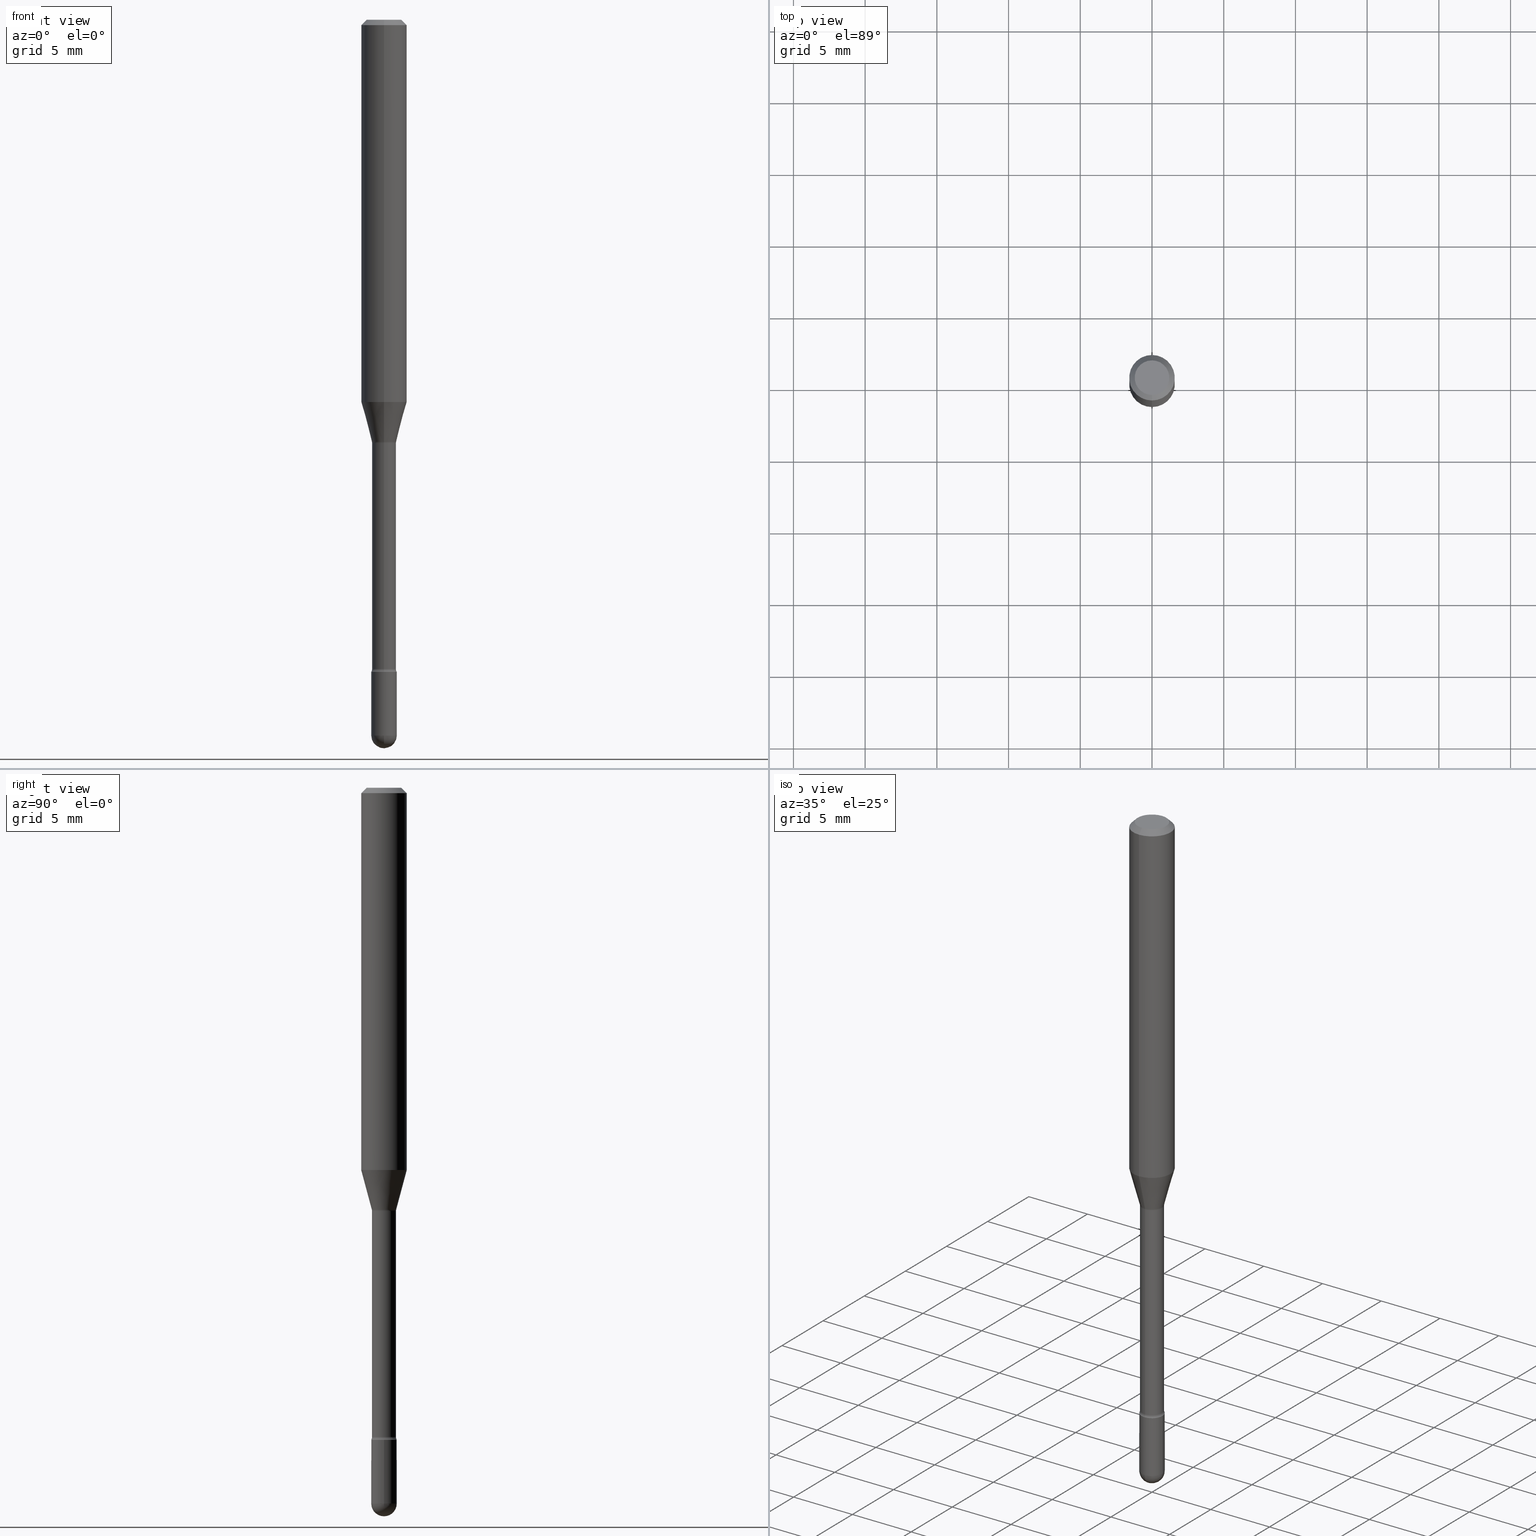
[diagram: canonical four-view strip — front | top / right | iso, engineering-drawing reading convention]
A machine part, canonical four-view strip (front | top / right | iso — engineering-drawing reading convention). The complete STEP part file that produces these views, byte-faithful:
ISO-10303-21;
HEADER;
FILE_DESCRIPTION (( 'STEP AP203' ),
    '1' );
FILE_NAME ('09328.STEP',
    '2024-04-09T22:32:50',
    ( '' ),
    ( '' ),
    'SwSTEP 2.0',
    'SolidWorks 2023',
    '' );
FILE_SCHEMA (( 'CONFIG_CONTROL_DESIGN' ));
ENDSEC;

DATA;
#1 = CARTESIAN_POINT ( 'NONE',  ( 2.374002335562008662E-16, 0.03341111260565993862, -1.158092501787273187 ) ) ;
#2 = EDGE_CURVE ( 'NONE', #305, #100, #418, .T. ) ;
#3 = VECTOR ( 'NONE', #344, 39.37007874015748143 ) ;
#4 = PRODUCT_DEFINITION_FORMATION_WITH_SPECIFIED_SOURCE ( 'ANY', '', #389, .NOT_KNOWN. ) ;
#5 = ORIENTED_EDGE ( 'NONE', *, *, #62, .T. ) ;
#6 = CC_DESIGN_PERSON_AND_ORGANIZATION_ASSIGNMENT ( #362, #313, ( #389 ) ) ;
#7 = APPROVAL ( #114, 'UNSPECIFIED' ) ;
#8 = VERTEX_POINT ( 'NONE', #291 ) ;
#9 = PLANE ( 'NONE',  #33 ) ;
#10 = TOROIDAL_SURFACE ( 'NONE', #482, 0.04790000000000007446, 0.01500000000000002373 ) ;
#11 = AXIS2_PLACEMENT_3D ( 'NONE', #355, #472, #73 ) ;
#12 = APPROVAL_PERSON_ORGANIZATION ( #532, #530, #39 ) ;
#13 = CARTESIAN_POINT ( 'NONE',  ( 4.805346204153793345E-29, -6.860760830826780393E-15, -1.964999999999999858 ) ) ;
#14 = DIRECTION ( 'NONE',  ( -2.445497683573463397E-29, 3.491439984779462686E-15, 1.000000000000000000 ) ) ;
#15 = SPHERICAL_SURFACE ( 'NONE', #302, 0.03500000000000001721 ) ;
#16 = FACE_OUTER_BOUND ( 'NONE', #332, .T. ) ;
#17 = EDGE_CURVE ( 'NONE', #503, #376, #507, .T. ) ;
#18 = CARTESIAN_POINT ( 'NONE',  ( 0.03500000000000000333, -6.799659907397025402E-15, -1.964999999999999858 ) ) ;
#19 = DIRECTION ( 'NONE',  ( -2.445468806185136597E-29, 3.491481338843145583E-15, 1.000000000000000000 ) ) ;
#20 = CIRCLE ( 'NONE', #229, 0.03500000000000000333 ) ;
#21 = AXIS2_PLACEMENT_3D ( 'NONE', #160, #297, #212 ) ;
#22 = DIRECTION ( 'NONE',  ( -6.982962677686265922E-15, -1.000000000000000000, 3.491439984779462292E-15 ) ) ;
#23 = FACE_OUTER_BOUND ( 'NONE', #321, .T. ) ;
#24 = DIRECTION ( 'NONE',  ( 1.000000000000000000, -6.982962677686265922E-15, 4.883557194083112340E-29 ) ) ;
#25 = ADVANCED_FACE ( 'NONE', ( #248 ), #10, .F. ) ;
#26 = CARTESIAN_POINT ( 'NONE',  ( -2.486899575159870668E-16, -0.03500000000000687284, -1.964999999999999858 ) ) ;
#27 = VERTEX_POINT ( 'NONE', #292 ) ;
#28 = DIRECTION ( 'NONE',  ( -1.000000000000000000, 7.105427357601001070E-15, -4.926315508542082329E-29 ) ) ;
#29 = CARTESIAN_POINT ( 'NONE',  ( 4.805346204153793345E-29, -6.860760830826780393E-15, -1.964999999999999858 ) ) ;
#30 = CARTESIAN_POINT ( 'NONE',  ( -1.169113584055446105E-44, 1.669184350826100908E-30, 4.780733988912460139E-16 ) ) ;
#31 = CARTESIAN_POINT ( 'NONE',  ( 3.668246525360215467E-31, -5.237159977169223045E-17, -0.01500000000000008271 ) ) ;
#32 = CONICAL_SURFACE ( 'NONE', #260, 0.06250000000000000000, 0.7853981633974483900 ) ;
#33 = AXIS2_PLACEMENT_3D ( 'NONE', #339, #455, #54 ) ;
#34 = CARTESIAN_POINT ( 'NONE',  ( 2.412292587905979007E-16, 0.03289999999999382307, -1.782345589506696193 ) ) ;
#35 = CARTESIAN_POINT ( 'NONE',  ( 2.841573096316353332E-29, -4.057013286636126142E-15, -1.161974787463810888 ) ) ;
#36 = DIRECTION ( 'NONE',  ( -2.445497683573463397E-29, 3.491439984779462686E-15, 1.000000000000000000 ) ) ;
#37 = PLANE ( 'NONE',  #379 ) ;
#38 = ORGANIZATION ( 'UNSPECIFIED', 'UNSPECIFIED', '' ) ;
#39 = APPROVAL_ROLE ( '' ) ;
#40 = ORIENTED_EDGE ( 'NONE', *, *, #286, .F. ) ;
#41 = EDGE_CURVE ( 'NONE', #390, #100, #508, .T. ) ;
#42 = CARTESIAN_POINT ( 'NONE',  ( 4.377440853596499335E-29, -6.249677572755238571E-15, -1.790000000000000036 ) ) ;
#43 = LENGTH_MEASURE_WITH_UNIT ( LENGTH_MEASURE( 0.02539999999999999897 ), #449 );
#44 = CALENDAR_DATE ( 2024, 9, 4 ) ;
#45 = ORIENTED_EDGE ( 'NONE', *, *, #17, .T. ) ;
#46 = EDGE_CURVE ( 'NONE', #257, #8, #306, .T. ) ;
#47 = AXIS2_PLACEMENT_3D ( 'NONE', #420, #19, #499 ) ;
#48 = ORIENTED_EDGE ( 'NONE', *, *, #316, .F. ) ;
#49 = DATE_AND_TIME ( #106, #238 ) ;
#50 = AXIS2_PLACEMENT_3D ( 'NONE', #152, #156, #232 ) ;
#51 = AXIS2_PLACEMENT_3D ( 'NONE', #486, #191, #438 ) ;
#52 = VERTEX_POINT ( 'NONE', #474 ) ;
#53 = FACE_OUTER_BOUND ( 'NONE', #346, .T. ) ;
#54 = DIRECTION ( 'NONE',  ( 1.000000000000000000, -6.982962677686265922E-15, 4.876176775795935793E-29 ) ) ;
#55 = LINE ( 'NONE', #546, #342 ) ;
#56 = CIRCLE ( 'NONE', #140, 0.03500000000000001721 ) ;
#57 = SECURITY_CLASSIFICATION ( '', '', #404 ) ;
#58 = ADVANCED_FACE ( 'NONE', ( #436 ), #541, .T. ) ;
#59 = DIRECTION ( 'NONE',  ( -6.982962677686266711E-15, -1.000000000000000000, 4.088232597799137334E-15 ) ) ;
#60 = CC_DESIGN_PERSON_AND_ORGANIZATION_ASSIGNMENT ( #563, #356, ( #57 ) ) ;
#61 = DIRECTION ( 'NONE',  ( -6.982962677686265922E-15, -1.000000000000000000, 3.491439984779462292E-15 ) ) ;
#62 = EDGE_CURVE ( 'NONE', #8, #202, #528, .T. ) ;
#63 = DIRECTION ( 'NONE',  ( 1.839019923739594793E-15, 0.2588190451025241812, 0.9659258262890673130 ) ) ;
#64 = APPROVAL ( #199, 'UNSPECIFIED' ) ;
#65 = ORIENTED_EDGE ( 'NONE', *, *, #509, .T. ) ;
#66 = EDGE_LOOP ( 'NONE', ( #552, #548 ) ) ;
#67 = DIRECTION ( 'NONE',  ( -2.445497683573463397E-29, 3.491439984779462686E-15, 1.000000000000000000 ) ) ;
#68 = ORIENTED_EDGE ( 'NONE', *, *, #226, .F. ) ;
#69 = CARTESIAN_POINT ( 'NONE',  ( -4.364351673553912750E-16, -0.06250000000000005551, -0.01499999999999986587 ) ) ;
#70 = DIRECTION ( 'NONE',  ( -2.445497683573463397E-29, 3.491439984779462686E-15, 1.000000000000000000 ) ) ;
#71 = FACE_OUTER_BOUND ( 'NONE', #411, .T. ) ;
#72 = CARTESIAN_POINT ( 'NONE',  ( 2.337685600650730998E-16, 0.03290000000000002645, 3.632050233920016564E-16 ) ) ;
#73 = DIRECTION ( 'NONE',  ( 1.000000000000000000, -6.982962677686276966E-15, 0.000000000000000000 ) ) ;
#74 = DIRECTION ( 'NONE',  ( -2.445497683573463397E-29, 3.491439984779462686E-15, 1.000000000000000000 ) ) ;
#75 = EDGE_LOOP ( 'NONE', ( #101, #115 ) ) ;
#76 = CARTESIAN_POINT ( 'NONE',  ( 2.023762844999115351E-45, -2.888933844171342410E-31, -8.274899638957028495E-17 ) ) ;
#77 = FACE_OUTER_BOUND ( 'NONE', #145, .T. ) ;
#78 = AXIS2_PLACEMENT_3D ( 'NONE', #421, #267, #441 ) ;
#79 = ORIENTED_EDGE ( 'NONE', *, *, #117, .F. ) ;
#80 = DIRECTION ( 'NONE',  ( -2.445497683573463397E-29, 3.491439984779462686E-15, 1.000000000000000000 ) ) ;
#81 = DIRECTION ( 'NONE',  ( -2.445497683573463397E-29, 3.491439984779462686E-15, 1.000000000000000000 ) ) ;
#82 = ADVANCED_FACE ( 'NONE', ( #423 ), #385, .T. ) ;
#83 = VERTEX_POINT ( 'NONE', #335 ) ;
#84 = CALENDAR_DATE ( 2024, 9, 4 ) ;
#85 = DIRECTION ( 'NONE',  ( 1.000000000000000000, -7.105427357601001070E-15, 4.926315002100865368E-29 ) ) ;
#86 = CARTESIAN_POINT ( 'NONE',  ( 4.377440853596499335E-29, -6.249677572755238571E-15, -1.790000000000000036 ) ) ;
#87 = EDGE_CURVE ( 'NONE', #52, #289, #377, .T. ) ;
#88 = ORIENTED_EDGE ( 'NONE', *, *, #153, .T. ) ;
#89 = DIRECTION ( 'NONE',  ( -2.445497683573463397E-29, 3.491439984779462686E-15, 1.000000000000000000 ) ) ;
#90 = AXIS2_PLACEMENT_3D ( 'NONE', #225, #431, #518 ) ;
#91 = APPROVAL_PERSON_ORGANIZATION ( #133, #64, #354 ) ;
#92 = APPROVAL_STATUS ( 'not_yet_approved' ) ;
#93 = ADVANCED_BREP_SHAPE_REPRESENTATION ( '09328', ( #273, #452, #326 ), #303 ) ;
#94 = CARTESIAN_POINT ( 'NONE',  ( 4.440892098500625669E-16, 0.06250000000000000000, 2.598583998425296453E-16 ) ) ;
#95 = ORIENTED_EDGE ( 'NONE', *, *, #338, .F. ) ;
#96 = APPLICATION_PROTOCOL_DEFINITION ( 'international standard', 'config_control_design', 1994, #400 ) ;
#97 = DIRECTION ( 'NONE',  ( -6.982962677686266711E-15, -1.000000000000000000, 4.151744671222284594E-15 ) ) ;
#98 = ORIENTED_EDGE ( 'NONE', *, *, #182, .F. ) ;
#99 = PERSON_AND_ORGANIZATION_ROLE ( 'design_supplier' ) ;
#100 = VERTEX_POINT ( 'NONE', #168 ) ;
#101 = ORIENTED_EDGE ( 'NONE', *, *, #41, .T. ) ;
#102 = AXIS2_PLACEMENT_3D ( 'NONE', #437, #89, #274 ) ;
#103 = APPROVAL_DATE_TIME ( #49, #7 ) ;
#104 = EDGE_LOOP ( 'NONE', ( #125, #143, #185, #148 ) ) ;
#105 = CYLINDRICAL_SURFACE ( 'NONE', #451, 0.03290000000000002645 ) ;
#106 = CALENDAR_DATE ( 2024, 9, 4 ) ;
#107 = ORIENTED_EDGE ( 'NONE', *, *, #126, .F. ) ;
#108 = EDGE_CURVE ( 'NONE', #503, #155, #283, .T. ) ;
#109 = FACE_OUTER_BOUND ( 'NONE', #135, .T. ) ;
#110 = CARTESIAN_POINT ( 'NONE',  ( -0.03500000000000000333, 2.486899575160350887E-16, -1.721627281589217108E-30 ) ) ;
#111 = CIRCLE ( 'NONE', #244, 0.06250000000000000000 ) ;
#112 = AXIS2_PLACEMENT_3D ( 'NONE', #42, #566, #138 ) ;
#113 = FACE_OUTER_BOUND ( 'NONE', #104, .T. ) ;
#114 = APPROVAL_STATUS ( 'not_yet_approved' ) ;
#115 = ORIENTED_EDGE ( 'NONE', *, *, #117, .T. ) ;
#116 = ORIENTED_EDGE ( 'NONE', *, *, #241, .T. ) ;
#117 = EDGE_CURVE ( 'NONE', #100, #390, #20, .T. ) ;
#118 = CC_DESIGN_PERSON_AND_ORGANIZATION_ASSIGNMENT ( #322, #99, ( #4 ) ) ;
#119 = CARTESIAN_POINT ( 'NONE',  ( -2.333085523452963922E-16, -0.03341111260566802243, -1.158092501787272965 ) ) ;
#120 = DIRECTION ( 'NONE',  ( 2.445497683573463397E-29, -3.491439984779462686E-15, -1.000000000000000000 ) ) ;
#121 = DIRECTION ( 'NONE',  ( -6.982962677686265922E-15, -1.000000000000000000, 4.370956789862821150E-15 ) ) ;
#122 = AXIS2_PLACEMENT_3D ( 'NONE', #497, #465, #462 ) ;
#123 = CC_DESIGN_APPROVAL ( #64, ( #477 ) ) ;
#124 = DIRECTION ( 'NONE',  ( 1.000000000000000000, -6.982962677686276966E-15, 0.000000000000000000 ) ) ;
#125 = ORIENTED_EDGE ( 'NONE', *, *, #262, .F. ) ;
#126 = EDGE_CURVE ( 'NONE', #202, #8, #111, .T. ) ;
#127 = CIRCLE ( 'NONE', #500, 0.03500000000000000333 ) ;
#128 = CONICAL_SURFACE ( 'NONE', #370, 0.03341111260566398400, 0.2617993877991495189 ) ;
#129 = DIRECTION ( 'NONE',  ( 2.445497683573463397E-29, -3.491439984779462686E-15, -1.000000000000000000 ) ) ;
#130 = CARTESIAN_POINT ( 'NONE',  ( 4.358670540980284355E-29, -6.223026365132014624E-15, -1.782345589506696193 ) ) ;
#131 = ADVANCED_FACE ( 'NONE', ( #223 ), #105, .T. ) ;
#132 = EDGE_LOOP ( 'NONE', ( #467, #496, #279, #68 ) ) ;
#133 = PERSON_AND_ORGANIZATION ( #521, #38 ) ;
#134 = CC_DESIGN_DATE_AND_TIME_ASSIGNMENT ( #201, #336, ( #57 ) ) ;
#135 = EDGE_LOOP ( 'NONE', ( #144, #139, #107, #98 ) ) ;
#136 = DATE_AND_TIME ( #44, #483 ) ;
#137 = ORIENTED_EDGE ( 'NONE', *, *, #371, .T. ) ;
#138 = DIRECTION ( 'NONE',  ( -6.982962677686265922E-15, -1.000000000000000000, 0.000000000000000000 ) ) ;
#139 = ORIENTED_EDGE ( 'NONE', *, *, #233, .T. ) ;
#140 = AXIS2_PLACEMENT_3D ( 'NONE', #345, #28, #308 ) ;
#141 = AXIS2_PLACEMENT_3D ( 'NONE', #130, #159, #22 ) ;
#142 = CALENDAR_DATE ( 2024, 9, 4 ) ;
#143 = ORIENTED_EDGE ( 'NONE', *, *, #224, .T. ) ;
#144 = ORIENTED_EDGE ( 'NONE', *, *, #87, .T. ) ;
#145 = EDGE_LOOP ( 'NONE', ( #409, #45, #264, #511 ) ) ;
#146 = PERSON_AND_ORGANIZATION ( #521, #38 ) ;
#147 = ORIENTED_EDGE ( 'NONE', *, *, #533, .T. ) ;
#148 = ORIENTED_EDGE ( 'NONE', *, *, #46, .F. ) ;
#149 = EDGE_CURVE ( 'NONE', #364, #366, #443, .T. ) ;
#150 = AXIS2_PLACEMENT_3D ( 'NONE', #295, #550, #121 ) ;
#151 = ORIENTED_EDGE ( 'NONE', *, *, #206, .F. ) ;
#152 = CARTESIAN_POINT ( 'NONE',  ( 3.403499704291162762E-16, 0.04789999999999593888, -1.161974787463810888 ) ) ;
#153 = EDGE_CURVE ( 'NONE', #83, #289, #234, .T. ) ;
#154 = CARTESIAN_POINT ( 'NONE',  ( 2.841606651113517657E-29, -4.056965234256767798E-15, -1.161974787463810888 ) ) ;
#155 = VERTEX_POINT ( 'NONE', #458 ) ;
#156 = DIRECTION ( 'NONE',  ( 1.000000000000000000, -7.105427357601001070E-15, 4.926315002100865368E-29 ) ) ;
#157 = DIRECTION ( 'NONE',  ( 6.982962677686265922E-15, 1.000000000000000000, 0.000000000000000000 ) ) ;
#158 = COORDINATED_UNIVERSAL_TIME_OFFSET ( 5, 0, .BEHIND. ) ;
#159 = DIRECTION ( 'NONE',  ( -2.445497683573463397E-29, 3.491439984779462686E-15, 1.000000000000000000 ) ) ;
#160 = CARTESIAN_POINT ( 'NONE',  ( -1.169113584055446105E-44, 1.669184350826100908E-30, 4.780733988912460139E-16 ) ) ;
#161 = AXIS2_PLACEMENT_3D ( 'NONE', #290, #14, #333 ) ;
#162 = EDGE_CURVE ( 'NONE', #428, #364, #433, .T. ) ;
#163 = CC_DESIGN_APPROVAL ( #530, ( #4 ) ) ;
#164 = DIRECTION ( 'NONE',  ( -6.982962677686265922E-15, -1.000000000000000000, 4.370956789862821150E-15 ) ) ;
#165 = EDGE_LOOP ( 'NONE', ( #287, #487, #166, #231, #147 ) ) ;
#166 = ORIENTED_EDGE ( 'NONE', *, *, #41, .F. ) ;
#167 = CARTESIAN_POINT ( 'NONE',  ( -0.03500000000000000333, -6.306566256161970939E-15, -1.964999999999999858 ) ) ;
#168 = CARTESIAN_POINT ( 'NONE',  ( -0.03500000000000000333, -6.306566256161970939E-15, -1.790000000000000036 ) ) ;
#169 = EDGE_LOOP ( 'NONE', ( #490, #304, #382, #369 ) ) ;
#170 = CIRCLE ( 'NONE', #311, 0.04749999999999999362 ) ;
#171 = DIRECTION ( 'NONE',  ( -1.807323732225324617E-15, -0.2588190451025174088, 0.9659258262890690894 ) ) ;
#172 = ADVANCED_FACE ( 'NONE', ( #294 ), #426, .T. ) ;
#173 = CARTESIAN_POINT ( 'NONE',  ( -2.333085523452963922E-16, -0.03341111260566802243, -1.158092501787272965 ) ) ;
#174 = DIRECTION ( 'NONE',  ( 7.105427357601001859E-15, 1.000000000000000000, 0.000000000000000000 ) ) ;
#175 = ADVANCED_FACE ( 'NONE', ( #556 ), #15, .T. ) ;
#176 = DIRECTION ( 'NONE',  ( -6.982962677686266711E-15, -1.000000000000000000, 3.491439984779463081E-15 ) ) ;
#177 = DIRECTION ( 'NONE',  ( -2.445497683573463397E-29, 3.491439984779462686E-15, 1.000000000000000000 ) ) ;
#178 = DIRECTION ( 'NONE',  ( -6.982962677686266711E-15, -1.000000000000000000, 3.491439984779463081E-15 ) ) ;
#179 = DIRECTION ( 'NONE',  ( -2.445468806185136877E-29, 3.491481338843145188E-15, 1.000000000000000000 ) ) ;
#180 = CARTESIAN_POINT ( 'NONE',  ( -1.169113584055446105E-44, 1.669184350826100908E-30, 4.780733988912460139E-16 ) ) ;
#181 = CLOSED_SHELL ( 'NONE', ( #495, #301, #439, #324, #363, #456, #172, #374, #277, #514, #547, #25, #131, #337 ) ) ;
#182 = EDGE_CURVE ( 'NONE', #52, #202, #55, .T. ) ;
#183 = VECTOR ( 'NONE', #365, 39.37007874015748143 ) ;
#184 = FACE_OUTER_BOUND ( 'NONE', #66, .T. ) ;
#185 = ORIENTED_EDGE ( 'NONE', *, *, #126, .T. ) ;
#186 = CARTESIAN_POINT ( 'NONE',  ( 0.000000000000000000, 0.000000000000000000, 0.000000000000000000 ) ) ;
#187 = DIRECTION ( 'NONE',  ( 6.982962677686265922E-15, 1.000000000000000000, -3.491439984779462686E-15 ) ) ;
#188 = CARTESIAN_POINT ( 'NONE',  ( 3.316907271900976096E-16, 0.04749999999999999362, 3.181880197381339971E-17 ) ) ;
#189 = ORIENTED_EDGE ( 'NONE', *, *, #182, .T. ) ;
#190 = APPROVAL_DATE_TIME ( #407, #530 ) ;
#191 = DIRECTION ( 'NONE',  ( -2.445468806185136597E-29, 3.491481338843145583E-15, 1.000000000000000000 ) ) ;
#192 = ORIENTED_EDGE ( 'NONE', *, *, #17, .F. ) ;
#193 = LINE ( 'NONE', #307, #515 ) ;
#194 = ORIENTED_EDGE ( 'NONE', *, *, #153, .F. ) ;
#195 = PERSON_AND_ORGANIZATION_ROLE ( 'creator' ) ;
#196 = AXIS2_PLACEMENT_3D ( 'NONE', #341, #427, #334 ) ;
#197 = LOCAL_TIME ( 18, 32, 50.00000000000000000, #527 ) ;
#198 = ORIENTED_EDGE ( 'NONE', *, *, #314, .T. ) ;
#199 = APPROVAL_STATUS ( 'not_yet_approved' ) ;
#200 = EDGE_LOOP ( 'NONE', ( #151, #531, #440, #415 ) ) ;
#201 = DATE_AND_TIME ( #142, #197 ) ;
#202 = VERTEX_POINT ( 'NONE', #69 ) ;
#203 = CARTESIAN_POINT ( 'NONE',  ( -2.297394720958497537E-16, -0.03290000000000405794, -1.161974787463810888 ) ) ;
#204 = PERSON_AND_ORGANIZATION ( #521, #38 ) ;
#205 = VERTEX_POINT ( 'NONE', #26 ) ;
#206 = EDGE_CURVE ( 'NONE', #503, #366, #256, .T. ) ;
#207 = ORIENTED_EDGE ( 'NONE', *, *, #485, .T. ) ;
#208 = AXIS2_PLACEMENT_3D ( 'NONE', #259, #398, #473 ) ;
#209 = APPROVAL_ROLE ( '' ) ;
#210 = CYLINDRICAL_SURFACE ( 'NONE', #21, 0.06250000000000000000 ) ;
#211 = CARTESIAN_POINT ( 'NONE',  ( 2.832112530484573364E-29, -4.043410466813366277E-15, -1.158092501787272965 ) ) ;
#212 = DIRECTION ( 'NONE',  ( -6.982962677686265922E-15, -1.000000000000000000, 3.491439984779462292E-15 ) ) ;
#213 = CARTESIAN_POINT ( 'NONE',  ( -1.169113584055446105E-44, 1.669184350826100908E-30, 4.780733988912460139E-16 ) ) ;
#214 = DIRECTION ( 'NONE',  ( -2.445497683573463397E-29, 3.491439984779462686E-15, 1.000000000000000000 ) ) ;
#215 = VECTOR ( 'NONE', #63, 39.37007874015748854 ) ;
#216 = CIRCLE ( 'NONE', #402, 0.03500000000000001721 ) ;
#217 = FACE_OUTER_BOUND ( 'NONE', #255, .T. ) ;
#218 = EDGE_CURVE ( 'NONE', #479, #376, #127, .T. ) ;
#219 = CARTESIAN_POINT ( 'NONE',  ( 2.832112530484573364E-29, -4.043410466813366277E-15, -1.158092501787272965 ) ) ;
#220 = EDGE_CURVE ( 'NONE', #366, #364, #348, .T. ) ;
#221 = CARTESIAN_POINT ( 'NONE',  ( 3.668246525360215467E-31, -5.237159977169223045E-17, -0.01500000000000008271 ) ) ;
#222 = TOROIDAL_SURFACE ( 'NONE', #161, 0.04789999999999999813, 0.01499999999999998036 ) ;
#223 = FACE_OUTER_BOUND ( 'NONE', #200, .T. ) ;
#224 = EDGE_CURVE ( 'NONE', #27, #202, #193, .T. ) ;
#225 = CARTESIAN_POINT ( 'NONE',  ( 0.000000000000000000, 0.000000000000000000, 0.000000000000000000 ) ) ;
#226 = EDGE_CURVE ( 'NONE', #417, #305, #561, .T. ) ;
#227 = DIRECTION ( 'NONE',  ( 0.000000000000000000, 0.000000000000000000, 1.000000000000000000 ) ) ;
#228 = CARTESIAN_POINT ( 'NONE',  ( 0.03500000000000000333, -2.444036937190193250E-16, 1.706661871528577808E-30 ) ) ;
#229 = AXIS2_PLACEMENT_3D ( 'NONE', #430, #388, #124 ) ;
#230 = CIRCLE ( 'NONE', #112, 0.03500000000000000333 ) ;
#231 = ORIENTED_EDGE ( 'NONE', *, *, #564, .F. ) ;
#232 = DIRECTION ( 'NONE',  ( 7.105427357601001859E-15, 1.000000000000000000, 0.000000000000000000 ) ) ;
#233 = EDGE_CURVE ( 'NONE', #289, #8, #410, .T. ) ;
#234 = LINE ( 'NONE', #1, #215 ) ;
#235 = CALENDAR_DATE ( 2024, 9, 4 ) ;
#236 = ORIENTED_EDGE ( 'NONE', *, *, #149, .T. ) ;
#237 = AXIS2_PLACEMENT_3D ( 'NONE', #211, #373, #59 ) ;
#238 = LOCAL_TIME ( 18, 32, 50.00000000000000000, #158 ) ;
#239 = ADVANCED_FACE ( 'NONE', ( #534 ), #466, .T. ) ;
#240 = SHAPE_DEFINITION_REPRESENTATION ( #554, #93 ) ;
#241 = EDGE_CURVE ( 'NONE', #155, #479, #368, .T. ) ;
#242 = ORIENTED_EDGE ( 'NONE', *, *, #371, .F. ) ;
#243 = ORIENTED_EDGE ( 'NONE', *, *, #535, .T. ) ;
#244 = AXIS2_PLACEMENT_3D ( 'NONE', #221, #74, #258 ) ;
#245 = AXIS2_PLACEMENT_3D ( 'NONE', #549, #67, #164 ) ;
#246 = CARTESIAN_POINT ( 'NONE',  ( 4.358722010466005313E-29, -6.222952657899001696E-15, -1.782345589506696193 ) ) ;
#247 = DIRECTION ( 'NONE',  ( 6.982962677686265922E-15, 1.000000000000000000, -3.483106191921935554E-15 ) ) ;
#248 = FACE_OUTER_BOUND ( 'NONE', #524, .T. ) ;
#249 = DIRECTION ( 'NONE',  ( -6.982962677686266711E-15, -1.000000000000000000, 3.491439984779463870E-15 ) ) ;
#250 = VECTOR ( 'NONE', #414, 39.37007874015748143 ) ;
#251 = AXIS2_PLACEMENT_3D ( 'NONE', #154, #266, #97 ) ;
#252 = LOCAL_TIME ( 18, 32, 50.00000000000000000, #478 ) ;
#253 = CARTESIAN_POINT ( 'NONE',  ( 4.358722010466005313E-29, -6.222952657899001696E-15, -1.782345589506696193 ) ) ;
#254 = EDGE_CURVE ( 'NONE', #205, #457, #272, .T. ) ;
#255 = EDGE_LOOP ( 'NONE', ( #498, #88, #488, #454 ) ) ;
#256 = LINE ( 'NONE', #72, #557 ) ;
#257 = VERTEX_POINT ( 'NONE', #391 ) ;
#258 = DIRECTION ( 'NONE',  ( -6.982962677686265922E-15, -1.000000000000000000, 3.483106191921935554E-15 ) ) ;
#259 = CARTESIAN_POINT ( 'NONE',  ( -3.344839122611290224E-16, -0.04790000000000629171, -1.782345589506695971 ) ) ;
#260 = AXIS2_PLACEMENT_3D ( 'NONE', #378, #120, #247 ) ;
#261 = VECTOR ( 'NONE', #179, 39.37007874015748143 ) ;
#262 = EDGE_CURVE ( 'NONE', #27, #257, #170, .T. ) ;
#263 = DIRECTION ( 'NONE',  ( -2.445497683573463397E-29, 3.491439984779462686E-15, 1.000000000000000000 ) ) ;
#264 = ORIENTED_EDGE ( 'NONE', *, *, #525, .T. ) ;
#265 = APPROVAL_DATE_TIME ( #480, #64 ) ;
#266 = DIRECTION ( 'NONE',  ( -2.445497683573463397E-29, 3.491439984779462686E-15, 1.000000000000000000 ) ) ;
#267 = DIRECTION ( 'NONE',  ( -2.445468806185136597E-29, 3.491481338843145583E-15, 1.000000000000000000 ) ) ;
#268 = DIRECTION ( 'NONE',  ( -2.445468806185136597E-29, 3.491481338843145583E-15, 1.000000000000000000 ) ) ;
#269 = ORIENTED_EDGE ( 'NONE', *, *, #564, .T. ) ;
#270 = PERSON_AND_ORGANIZATION ( #521, #38 ) ;
#271 = AXIS2_PLACEMENT_3D ( 'NONE', #328, #85, #174 ) ;
#272 = CIRCLE ( 'NONE', #312, 0.03500000000000000333 ) ;
#273 = MANIFOLD_SOLID_BREP ( 'Body-Move/Copy2[1]', #357 ) ;
#274 = DIRECTION ( 'NONE',  ( -6.982962677686266711E-15, -1.000000000000000000, 4.151744671222284594E-15 ) ) ;
#275 = EDGE_LOOP ( 'NONE', ( #446, #493 ) ) ;
#276 = COORDINATED_UNIVERSAL_TIME_OFFSET ( 5, 0, .BEHIND. ) ;
#277 = ADVANCED_FACE ( 'NONE', ( #71 ), #408, .T. ) ;
#278 =( NAMED_UNIT ( * ) PLANE_ANGLE_UNIT ( ) SI_UNIT ( $, .RADIAN. ) );
#279 = ORIENTED_EDGE ( 'NONE', *, *, #509, .F. ) ;
#280 = ORIENTED_EDGE ( 'NONE', *, *, #162, .T. ) ;
#281 = DIRECTION ( 'NONE',  ( -6.982962677686265922E-15, -1.000000000000000000, 3.491439984779462686E-15 ) ) ;
#282 = EDGE_LOOP ( 'NONE', ( #48, #207, #506, #526 ) ) ;
#283 = CIRCLE ( 'NONE', #463, 0.03290000000000004726 ) ;
#284 = DIRECTION ( 'NONE',  ( -6.982962677686266711E-15, -1.000000000000000000, 0.000000000000000000 ) ) ;
#285 = TOROIDAL_SURFACE ( 'NONE', #380, 0.04789999999999999813, 0.01499999999999998036 ) ;
#286 = EDGE_CURVE ( 'NONE', #257, #27, #318, .T. ) ;
#287 = ORIENTED_EDGE ( 'NONE', *, *, #226, .T. ) ;
#288 = FACE_OUTER_BOUND ( 'NONE', #75, .T. ) ;
#289 = VERTEX_POINT ( 'NONE', #347 ) ;
#290 = CARTESIAN_POINT ( 'NONE',  ( 2.841573096316353332E-29, -4.057013286636126142E-15, -1.161974787463810888 ) ) ;
#291 = CARTESIAN_POINT ( 'NONE',  ( 4.440892098500883528E-16, 0.06249999999999993755, -0.01500000000000030129 ) ) ;
#292 = CARTESIAN_POINT ( 'NONE',  ( -3.773273898774340269E-16, -0.04749999999999999362, 8.309440288745416751E-17 ) ) ;
#293 = AXIS2_PLACEMENT_3D ( 'NONE', #219, #214, #387 ) ;
#294 = FACE_OUTER_BOUND ( 'NONE', #331, .T. ) ;
#295 = CARTESIAN_POINT ( 'NONE',  ( 2.566626353440528363E-29, -3.664375532466852274E-15, -1.049531296095961297 ) ) ;
#296 = CIRCLE ( 'NONE', #245, 0.06250000000000000000 ) ;
#297 = DIRECTION ( 'NONE',  ( -2.445497683573463397E-29, 3.491439984779462686E-15, 1.000000000000000000 ) ) ;
#298 = UNCERTAINTY_MEASURE_WITH_UNIT (LENGTH_MEASURE( 1.000000000000000082E-05 ), #484, 'distance_accuracy_value', 'NONE');
#299 = CARTESIAN_POINT ( 'NONE',  ( 4.805346204153793345E-29, -6.860760830826780393E-15, -1.964999999999999858 ) ) ;
#300 = CARTESIAN_POINT ( 'NONE',  ( 4.358670540980284355E-29, -6.223026365132014624E-15, -1.782345589506696193 ) ) ;
#301 = ADVANCED_FACE ( 'NONE', ( #23 ), #461, .T. ) ;
#302 = AXIS2_PLACEMENT_3D ( 'NONE', #396, #384, #494 ) ;
#303 =( GEOMETRIC_REPRESENTATION_CONTEXT ( 3 ) GLOBAL_UNCERTAINTY_ASSIGNED_CONTEXT ( ( #298 ) ) GLOBAL_UNIT_ASSIGNED_CONTEXT ( ( #484, #278, #317 ) ) REPRESENTATION_CONTEXT ( 'NONE', 'WORKASPACE' ) );
#304 = ORIENTED_EDGE ( 'NONE', *, *, #432, .T. ) ;
#305 = VERTEX_POINT ( 'NONE', #167 ) ;
#306 = LINE ( 'NONE', #471, #3 ) ;
#307 = CARTESIAN_POINT ( 'NONE',  ( -4.287811248607203282E-16, -0.06250000000000005551, -0.01499999999999986587 ) ) ;
#308 = DIRECTION ( 'NONE',  ( -7.105427357601001859E-15, -1.000000000000000000, 0.000000000000000000 ) ) ;
#309 = VERTEX_POINT ( 'NONE', #340 ) ;
#310 = CARTESIAN_POINT ( 'NONE',  ( 4.805346204153793345E-29, -6.860760830826780393E-15, -1.964999999999999858 ) ) ;
#311 = AXIS2_PLACEMENT_3D ( 'NONE', #476, #81, #178 ) ;
#312 = AXIS2_PLACEMENT_3D ( 'NONE', #29, #513, #469 ) ;
#313 = PERSON_AND_ORGANIZATION_ROLE ( 'design_owner' ) ;
#314 = EDGE_CURVE ( 'NONE', #428, #52, #505, .T. ) ;
#315 = DIRECTION ( 'NONE',  ( -2.445497683573463117E-29, 3.491439984779462686E-15, 1.000000000000000000 ) ) ;
#316 = EDGE_CURVE ( 'NONE', #309, #205, #56, .T. ) ;
#317 =( NAMED_UNIT ( * ) SI_UNIT ( $, .STERADIAN. ) SOLID_ANGLE_UNIT ( ) );
#318 = CIRCLE ( 'NONE', #325, 0.04749999999999999362 ) ;
#319 = VECTOR ( 'NONE', #395, 39.37007874015748143 ) ;
#320 = LINE ( 'NONE', #228, #261 ) ;
#321 = EDGE_LOOP ( 'NONE', ( #460, #522, #361, #383 ) ) ;
#322 = PERSON_AND_ORGANIZATION ( #521, #38 ) ;
#323 = ORIENTED_EDGE ( 'NONE', *, *, #218, .T. ) ;
#324 = ADVANCED_FACE ( 'NONE', ( #113 ), #32, .T. ) ;
#325 = AXIS2_PLACEMENT_3D ( 'NONE', #76, #70, #176 ) ;
#326 = AXIS2_PLACEMENT_3D ( 'NONE', #186, #227, #399 ) ;
#327 = DIRECTION ( 'NONE',  ( -2.445497683573463397E-29, 3.491439984779462686E-15, 1.000000000000000000 ) ) ;
#328 = CARTESIAN_POINT ( 'NONE',  ( 3.403499704291320534E-16, 0.04789999999999385027, -1.782345589506696415 ) ) ;
#329 = DIRECTION ( 'NONE',  ( -2.445497683573463397E-29, 3.491439984779462686E-15, 1.000000000000000000 ) ) ;
#330 = CARTESIAN_POINT ( 'NONE',  ( 2.337685600651167829E-16, 0.03289999999999595331, -1.161974787463811110 ) ) ;
#331 = EDGE_LOOP ( 'NONE', ( #194, #243, #198, #242 ) ) ;
#332 = EDGE_LOOP ( 'NONE', ( #536, #137, #189, #424 ) ) ;
#333 = DIRECTION ( 'NONE',  ( -6.982962677686266711E-15, -1.000000000000000000, 3.491439984779462686E-15 ) ) ;
#334 = DIRECTION ( 'NONE',  ( -6.982962677686266711E-15, -1.000000000000000000, 0.000000000000000000 ) ) ;
#335 = CARTESIAN_POINT ( 'NONE',  ( 3.407447217031446095E-16, 0.03341111260565993862, -1.158092501787273187 ) ) ;
#336 = DATE_TIME_ROLE ( 'classification_date' ) ;
#337 = ADVANCED_FACE ( 'NONE', ( #53 ), #222, .F. ) ;
#338 = EDGE_CURVE ( 'NONE', #428, #83, #475, .T. ) ;
#339 = CARTESIAN_POINT ( 'NONE',  ( 4.377389163071394665E-29, -6.249751596529231267E-15, -1.790000000000000036 ) ) ;
#340 = CARTESIAN_POINT ( 'NONE',  ( 4.892434153376336703E-29, -6.980819545787783111E-15, -2.000000000000000000 ) ) ;
#341 = CARTESIAN_POINT ( 'NONE',  ( -3.344839122611437149E-16, -0.04790000000000405045, -1.161974787463810665 ) ) ;
#342 = VECTOR ( 'NONE', #468, 39.37007874015748143 ) ;
#343 = AXIS2_PLACEMENT_3D ( 'NONE', #213, #453, #413 ) ;
#344 = DIRECTION ( 'NONE',  ( 4.937700262164548042E-15, 0.7071067811865451302, -0.7071067811865499042 ) ) ;
#345 = CARTESIAN_POINT ( 'NONE',  ( 4.805346204153793345E-29, -6.860760830826780393E-15, -1.964999999999999858 ) ) ;
#346 = EDGE_LOOP ( 'NONE', ( #450, #95, #280, #236 ) ) ;
#347 = CARTESIAN_POINT ( 'NONE',  ( 4.440892098500882541E-16, 0.06249999999999634320, -1.049531296095961519 ) ) ;
#348 = CIRCLE ( 'NONE', #102, 0.03289999999999999869 ) ;
#349 = CARTESIAN_POINT ( 'NONE',  ( 2.832112530484573364E-29, -4.043410466813366277E-15, -1.158092501787272965 ) ) ;
#350 = CIRCLE ( 'NONE', #51, 0.03500000000000000333 ) ;
#351 = APPLICATION_PROTOCOL_DEFINITION ( 'international standard', 'config_control_design', 1994, #435 ) ;
#352 = EDGE_CURVE ( 'NONE', #155, #503, #543, .T. ) ;
#353 = DIRECTION ( 'NONE',  ( -2.445497683573463397E-29, 3.491439984779462686E-15, 1.000000000000000000 ) ) ;
#354 = APPROVAL_ROLE ( '' ) ;
#355 = CARTESIAN_POINT ( 'NONE',  ( 4.805346204153793345E-29, -6.860760830826780393E-15, -1.964999999999999858 ) ) ;
#356 = PERSON_AND_ORGANIZATION_ROLE ( 'classification_officer' ) ;
#357 = CLOSED_SHELL ( 'NONE', ( #82, #58, #381, #175, #239 ) ) ;
#358 = AXIS2_PLACEMENT_3D ( 'NONE', #13, #372, #157 ) ;
#359 = DIRECTION ( 'NONE',  ( 1.000000000000000000, -6.982962677686276966E-15, 0.000000000000000000 ) ) ;
#360 = AXIS2_PLACEMENT_3D ( 'NONE', #310, #268, #359 ) ;
#361 = ORIENTED_EDGE ( 'NONE', *, *, #149, .F. ) ;
#362 = PERSON_AND_ORGANIZATION ( #521, #38 ) ;
#363 = ADVANCED_FACE ( 'NONE', ( #109 ), #545, .T. ) ;
#364 = VERTEX_POINT ( 'NONE', #203 ) ;
#365 = DIRECTION ( 'NONE',  ( -2.445497683573463397E-29, 3.491439984779462686E-15, 1.000000000000000000 ) ) ;
#366 = VERTEX_POINT ( 'NONE', #330 ) ;
#367 = ORIENTED_EDGE ( 'NONE', *, *, #2, .F. ) ;
#368 = CIRCLE ( 'NONE', #208, 0.01500000000000001853 ) ;
#369 = ORIENTED_EDGE ( 'NONE', *, *, #162, .F. ) ;
#370 = AXIS2_PLACEMENT_3D ( 'NONE', #553, #329, #491 ) ;
#371 = EDGE_CURVE ( 'NONE', #289, #52, #296, .T. ) ;
#372 = DIRECTION ( 'NONE',  ( -1.000000000000000000, 6.982962677686265922E-15, -4.883557194083112340E-29 ) ) ;
#373 = DIRECTION ( 'NONE',  ( -2.445497683573463397E-29, 3.491439984779462686E-15, 1.000000000000000000 ) ) ;
#374 = ADVANCED_FACE ( 'NONE', ( #16 ), #210, .T. ) ;
#375 = ORIENTED_EDGE ( 'NONE', *, *, #46, .T. ) ;
#376 = VERTEX_POINT ( 'NONE', #540 ) ;
#377 = CIRCLE ( 'NONE', #150, 0.06250000000000000000 ) ;
#378 = CARTESIAN_POINT ( 'NONE',  ( 3.668246525360215467E-31, -5.237159977169223045E-17, -0.01500000000000008271 ) ) ;
#379 = AXIS2_PLACEMENT_3D ( 'NONE', #188, #447, #187 ) ;
#380 = AXIS2_PLACEMENT_3D ( 'NONE', #35, #177, #560 ) ;
#381 = ADVANCED_FACE ( 'NONE', ( #288 ), #9, .T. ) ;
#382 = ORIENTED_EDGE ( 'NONE', *, *, #220, .T. ) ;
#383 = ORIENTED_EDGE ( 'NONE', *, *, #416, .F. ) ;
#384 = DIRECTION ( 'NONE',  ( -1.000000000000000000, 6.982962677686265922E-15, -4.883557194083112340E-29 ) ) ;
#385 = CYLINDRICAL_SURFACE ( 'NONE', #47, 0.03500000000000000333 ) ;
#386 = DIRECTION ( 'NONE',  ( 6.982962677686265922E-15, 1.000000000000000000, 0.000000000000000000 ) ) ;
#387 = DIRECTION ( 'NONE',  ( -6.982962677686266711E-15, -1.000000000000000000, 4.088232597799137334E-15 ) ) ;
#388 = DIRECTION ( 'NONE',  ( -2.445468806185136597E-29, 3.491481338843145583E-15, 1.000000000000000000 ) ) ;
#389 = PRODUCT ( '09328', '09328', '', ( #565 ) ) ;
#390 = VERTEX_POINT ( 'NONE', #412 ) ;
#391 = CARTESIAN_POINT ( 'NONE',  ( 3.840629472727447874E-16, 0.04749999999999999362, -2.485923956665947374E-16 ) ) ;
#392 = DESIGN_CONTEXT ( 'detailed design', #435, 'design' ) ;
#393 = AXIS2_PLACEMENT_3D ( 'NONE', #30, #429, #249 ) ;
#394 = CC_DESIGN_SECURITY_CLASSIFICATION ( #57, ( #4 ) ) ;
#395 = DIRECTION ( 'NONE',  ( -2.445497683573463397E-29, 3.491439984779462686E-15, 1.000000000000000000 ) ) ;
#396 = CARTESIAN_POINT ( 'NONE',  ( 4.805346204153793345E-29, -6.860760830826780393E-15, -1.964999999999999858 ) ) ;
#397 = CC_DESIGN_PERSON_AND_ORGANIZATION_ASSIGNMENT ( #270, #442, ( #477 ) ) ;
#398 = DIRECTION ( 'NONE',  ( -1.000000000000000000, 6.982962677686265922E-15, -4.883557194083112340E-29 ) ) ;
#399 = DIRECTION ( 'NONE',  ( 1.000000000000000000, 0.000000000000000000, 0.000000000000000000 ) ) ;
#400 = APPLICATION_CONTEXT ( 'configuration controlled 3d designs of mechanical parts and assemblies' ) ;
#401 = VECTOR ( 'NONE', #171, 39.37007874015748854 ) ;
#402 = AXIS2_PLACEMENT_3D ( 'NONE', #299, #24, #386 ) ;
#403 = CC_DESIGN_DATE_AND_TIME_ASSIGNMENT ( #136, #523, ( #477 ) ) ;
#404 = SECURITY_CLASSIFICATION_LEVEL ( 'unclassified' ) ;
#405 = ORIENTED_EDGE ( 'NONE', *, *, #254, .T. ) ;
#406 = DIRECTION ( 'NONE',  ( -4.851104656540964275E-15, -0.7071067811865500152, -0.7071067811865450192 ) ) ;
#407 = DATE_AND_TIME ( #235, #434 ) ;
#408 = CONICAL_SURFACE ( 'NONE', #492, 0.06250000000000000000, 0.7853981633974483900 ) ;
#409 = ORIENTED_EDGE ( 'NONE', *, *, #108, .F. ) ;
#410 = LINE ( 'NONE', #94, #183 ) ;
#411 = EDGE_LOOP ( 'NONE', ( #448, #40, #375, #5 ) ) ;
#412 = CARTESIAN_POINT ( 'NONE',  ( 0.03500000000000000333, -6.494155290248250444E-15, -1.790000000000000036 ) ) ;
#413 = DIRECTION ( 'NONE',  ( -6.982962677686265922E-15, -1.000000000000000000, 3.491439984779462292E-15 ) ) ;
#414 = DIRECTION ( 'NONE',  ( -2.445468806185136877E-29, 3.491481338843145188E-15, 1.000000000000000000 ) ) ;
#415 = ORIENTED_EDGE ( 'NONE', *, *, #220, .F. ) ;
#416 = EDGE_CURVE ( 'NONE', #155, #364, #510, .T. ) ;
#417 = VERTEX_POINT ( 'NONE', #559 ) ;
#418 = LINE ( 'NONE', #110, #250 ) ;
#419 = DIRECTION ( 'NONE',  ( -2.445497683573463397E-29, 3.491439984779462686E-15, 1.000000000000000000 ) ) ;
#420 = CARTESIAN_POINT ( 'NONE',  ( 0.000000000000000000, 0.000000000000000000, 0.000000000000000000 ) ) ;
#421 = CARTESIAN_POINT ( 'NONE',  ( 4.377389163071394665E-29, -6.249751596529231267E-15, -1.790000000000000036 ) ) ;
#422 = CARTESIAN_POINT ( 'NONE',  ( 2.444036937190630575E-16, 0.03499999999999375139, -1.790000000000000036 ) ) ;
#423 = FACE_OUTER_BOUND ( 'NONE', #165, .T. ) ;
#424 = ORIENTED_EDGE ( 'NONE', *, *, #62, .F. ) ;
#425 = DIRECTION ( 'NONE',  ( 6.982962677686265922E-15, 1.000000000000000000, -3.483106191921935554E-15 ) ) ;
#426 = CONICAL_SURFACE ( 'NONE', #293, 0.03341111260566398400, 0.2617993877991495189 ) ;
#427 = DIRECTION ( 'NONE',  ( -1.000000000000000000, 6.982962677686265922E-15, -4.883557194083112340E-29 ) ) ;
#428 = VERTEX_POINT ( 'NONE', #173 ) ;
#429 = DIRECTION ( 'NONE',  ( -2.445497683573463397E-29, 3.491439984779462686E-15, 1.000000000000000000 ) ) ;
#430 = CARTESIAN_POINT ( 'NONE',  ( 4.377389163071394665E-29, -6.249751596529231267E-15, -1.790000000000000036 ) ) ;
#431 = DIRECTION ( 'NONE',  ( -2.445468806185136597E-29, 3.491481338843145583E-15, 1.000000000000000000 ) ) ;
#432 = EDGE_CURVE ( 'NONE', #83, #366, #464, .T. ) ;
#433 = CIRCLE ( 'NONE', #196, 0.01499999999999997689 ) ;
#434 = LOCAL_TIME ( 18, 32, 50.00000000000000000, #276 ) ;
#435 = APPLICATION_CONTEXT ( 'configuration controlled 3d designs of mechanical parts and assemblies' ) ;
#436 = FACE_OUTER_BOUND ( 'NONE', #132, .T. ) ;
#437 = CARTESIAN_POINT ( 'NONE',  ( 2.841606651113517657E-29, -4.056965234256767798E-15, -1.161974787463810888 ) ) ;
#438 = DIRECTION ( 'NONE',  ( 1.000000000000000000, -6.982962677686276966E-15, 0.000000000000000000 ) ) ;
#439 = ADVANCED_FACE ( 'NONE', ( #77 ), #558, .F. ) ;
#440 = ORIENTED_EDGE ( 'NONE', *, *, #416, .T. ) ;
#441 = DIRECTION ( 'NONE',  ( 1.000000000000000000, -6.982962677686276966E-15, 0.000000000000000000 ) ) ;
#442 = PERSON_AND_ORGANIZATION_ROLE ( 'creator' ) ;
#443 = CIRCLE ( 'NONE', #251, 0.03289999999999999869 ) ;
#444 = CC_DESIGN_APPROVAL ( #7, ( #57 ) ) ;
#445 = FACE_OUTER_BOUND ( 'NONE', #275, .T. ) ;
#446 = ORIENTED_EDGE ( 'NONE', *, *, #218, .F. ) ;
#447 = DIRECTION ( 'NONE',  ( 2.445497683573463117E-29, -3.491439984779462686E-15, -1.000000000000000000 ) ) ;
#448 = ORIENTED_EDGE ( 'NONE', *, *, #224, .F. ) ;
#449 =( LENGTH_UNIT ( ) NAMED_UNIT ( * ) SI_UNIT ( $, .METRE. ) );
#450 = ORIENTED_EDGE ( 'NONE', *, *, #432, .F. ) ;
#451 = AXIS2_PLACEMENT_3D ( 'NONE', #180, #327, #539 ) ;
#452 = MANIFOLD_SOLID_BREP ( 'Body-Move/Copy2[2]', #181 ) ;
#453 = DIRECTION ( 'NONE',  ( -2.445497683573463397E-29, 3.491439984779462686E-15, 1.000000000000000000 ) ) ;
#454 = ORIENTED_EDGE ( 'NONE', *, *, #314, .F. ) ;
#455 = DIRECTION ( 'NONE',  ( -2.438088387897960049E-29, 3.491481338843145188E-15, 1.000000000000000000 ) ) ;
#456 = ADVANCED_FACE ( 'NONE', ( #217 ), #128, .T. ) ;
#457 = VERTEX_POINT ( 'NONE', #18 ) ;
#458 = CARTESIAN_POINT ( 'NONE',  ( -2.297394720958349133E-16, -0.03290000000000627145, -1.782345589506696193 ) ) ;
#459 = DIRECTION ( 'NONE',  ( -2.445497683573463397E-29, 3.491439984779462686E-15, 1.000000000000000000 ) ) ;
#460 = ORIENTED_EDGE ( 'NONE', *, *, #352, .T. ) ;
#461 = CYLINDRICAL_SURFACE ( 'NONE', #393, 0.03290000000000002645 ) ;
#462 = DIRECTION ( 'NONE',  ( -6.982962677686265922E-15, -1.000000000000000000, 3.483106191921935554E-15 ) ) ;
#463 = AXIS2_PLACEMENT_3D ( 'NONE', #253, #263, #512 ) ;
#464 = CIRCLE ( 'NONE', #50, 0.01499999999999997689 ) ;
#465 = DIRECTION ( 'NONE',  ( -2.445497683573463397E-29, 3.491439984779462686E-15, 1.000000000000000000 ) ) ;
#466 = CYLINDRICAL_SURFACE ( 'NONE', #90, 0.03500000000000000333 ) ;
#467 = ORIENTED_EDGE ( 'NONE', *, *, #485, .F. ) ;
#468 = DIRECTION ( 'NONE',  ( -2.445497683573463397E-29, 3.491439984779462686E-15, 1.000000000000000000 ) ) ;
#469 = DIRECTION ( 'NONE',  ( 1.000000000000000000, -6.982962677686276966E-15, 0.000000000000000000 ) ) ;
#470 = CARTESIAN_POINT ( 'NONE',  ( -2.297394720958783499E-16, -0.03290000000000002645, 5.929417743904905687E-16 ) ) ;
#471 = CARTESIAN_POINT ( 'NONE',  ( 4.364351673553919652E-16, 0.06249999999999995143, -0.01500000000000030129 ) ) ;
#472 = DIRECTION ( 'NONE',  ( -2.445468806185136597E-29, 3.491481338843145583E-15, 1.000000000000000000 ) ) ;
#473 = DIRECTION ( 'NONE',  ( -6.982962677686267499E-15, -1.000000000000000000, 0.000000000000000000 ) ) ;
#474 = CARTESIAN_POINT ( 'NONE',  ( -4.364351673553658835E-16, -0.06250000000000366374, -1.049531296095960853 ) ) ;
#475 = CIRCLE ( 'NONE', #237, 0.03341111260566398400 ) ;
#476 = CARTESIAN_POINT ( 'NONE',  ( 2.023762844999115351E-45, -2.888933844171342410E-31, -8.274899638957028495E-17 ) ) ;
#477 = PRODUCT_DEFINITION ( 'UNKNOWN', '', #4, #392 ) ;
#478 = COORDINATED_UNIVERSAL_TIME_OFFSET ( 5, 0, .BEHIND. ) ;
#479 = VERTEX_POINT ( 'NONE', #502 ) ;
#480 = DATE_AND_TIME ( #84, #252 ) ;
#481 = DIRECTION ( 'NONE',  ( -6.982962677686265922E-15, -1.000000000000000000, 0.000000000000000000 ) ) ;
#482 = AXIS2_PLACEMENT_3D ( 'NONE', #300, #459, #61 ) ;
#483 = LOCAL_TIME ( 18, 32, 50.00000000000000000, #489 ) ;
#484 =( CONVERSION_BASED_UNIT ( 'INCH', #43 ) LENGTH_UNIT ( ) NAMED_UNIT ( #551 ) );
#485 = EDGE_CURVE ( 'NONE', #309, #417, #216, .T. ) ;
#486 = CARTESIAN_POINT ( 'NONE',  ( 4.805346204153793345E-29, -6.860760830826780393E-15, -1.964999999999999858 ) ) ;
#487 = ORIENTED_EDGE ( 'NONE', *, *, #2, .T. ) ;
#488 = ORIENTED_EDGE ( 'NONE', *, *, #87, .F. ) ;
#489 = COORDINATED_UNIVERSAL_TIME_OFFSET ( 5, 0, .BEHIND. ) ;
#490 = ORIENTED_EDGE ( 'NONE', *, *, #535, .F. ) ;
#491 = DIRECTION ( 'NONE',  ( -6.982962677686266711E-15, -1.000000000000000000, 4.088232597799137334E-15 ) ) ;
#492 = AXIS2_PLACEMENT_3D ( 'NONE', #31, #129, #425 ) ;
#493 = ORIENTED_EDGE ( 'NONE', *, *, #525, .F. ) ;
#494 = DIRECTION ( 'NONE',  ( 6.982962677686265922E-15, 1.000000000000000000, 0.000000000000000000 ) ) ;
#495 = ADVANCED_FACE ( 'NONE', ( #555 ), #285, .F. ) ;
#496 = ORIENTED_EDGE ( 'NONE', *, *, #316, .T. ) ;
#497 = CARTESIAN_POINT ( 'NONE',  ( 3.668246525360215467E-31, -5.237159977169223045E-17, -0.01500000000000008271 ) ) ;
#498 = ORIENTED_EDGE ( 'NONE', *, *, #338, .T. ) ;
#499 = DIRECTION ( 'NONE',  ( 1.000000000000000000, -6.982962677686265922E-15, 4.876176775795936353E-29 ) ) ;
#500 = AXIS2_PLACEMENT_3D ( 'NONE', #86, #353, #481 ) ;
#501 = CIRCLE ( 'NONE', #517, 0.03341111260566398400 ) ;
#502 = CARTESIAN_POINT ( 'NONE',  ( -2.444036937189756418E-16, -0.03500000000000626221, -1.789999999999999813 ) ) ;
#503 = VERTEX_POINT ( 'NONE', #34 ) ;
#504 = PRODUCT_RELATED_PRODUCT_CATEGORY ( 'detail', '', ( #389 ) ) ;
#505 = LINE ( 'NONE', #119, #401 ) ;
#506 = ORIENTED_EDGE ( 'NONE', *, *, #533, .F. ) ;
#507 = CIRCLE ( 'NONE', #271, 0.01500000000000001853 ) ;
#508 = CIRCLE ( 'NONE', #78, 0.03500000000000000333 ) ;
#509 = EDGE_CURVE ( 'NONE', #305, #205, #562, .T. ) ;
#510 = LINE ( 'NONE', #470, #319 ) ;
#511 = ORIENTED_EDGE ( 'NONE', *, *, #241, .F. ) ;
#512 = DIRECTION ( 'NONE',  ( -6.982962677686266711E-15, -1.000000000000000000, 0.000000000000000000 ) ) ;
#513 = DIRECTION ( 'NONE',  ( -2.445468806185136597E-29, 3.491481338843145583E-15, 1.000000000000000000 ) ) ;
#514 = ADVANCED_FACE ( 'NONE', ( #184 ), #37, .F. ) ;
#515 = VECTOR ( 'NONE', #406, 39.37007874015748143 ) ;
#516 = CC_DESIGN_PERSON_AND_ORGANIZATION_ASSIGNMENT ( #146, #195, ( #4 ) ) ;
#517 = AXIS2_PLACEMENT_3D ( 'NONE', #349, #36, #519 ) ;
#518 = DIRECTION ( 'NONE',  ( 1.000000000000000000, -6.982962677686265922E-15, 4.876176775795936353E-29 ) ) ;
#519 = DIRECTION ( 'NONE',  ( -6.982962677686266711E-15, -1.000000000000000000, 4.088232597799137334E-15 ) ) ;
#520 = PLANE ( 'NONE',  #537 ) ;
#521 = PERSON ( 'UNSPECIFIED', 'UNSPECIFIED', 'UNSPECIFIED', ('UNSPECIFIED'), ('UNSPECIFIED'), ('UNSPECIFIED') ) ;
#522 = ORIENTED_EDGE ( 'NONE', *, *, #206, .T. ) ;
#523 = DATE_TIME_ROLE ( 'creation_date' ) ;
#524 = EDGE_LOOP ( 'NONE', ( #192, #538, #116, #323 ) ) ;
#525 = EDGE_CURVE ( 'NONE', #376, #479, #230, .T. ) ;
#526 = ORIENTED_EDGE ( 'NONE', *, *, #254, .F. ) ;
#527 = COORDINATED_UNIVERSAL_TIME_OFFSET ( 5, 0, .BEHIND. ) ;
#528 = CIRCLE ( 'NONE', #122, 0.06250000000000000000 ) ;
#529 = APPROVAL_PERSON_ORGANIZATION ( #204, #7, #209 ) ;
#530 = APPROVAL ( #92, 'UNSPECIFIED' ) ;
#531 = ORIENTED_EDGE ( 'NONE', *, *, #108, .T. ) ;
#532 = PERSON_AND_ORGANIZATION ( #521, #38 ) ;
#533 = EDGE_CURVE ( 'NONE', #457, #417, #350, .T. ) ;
#534 = FACE_OUTER_BOUND ( 'NONE', #544, .T. ) ;
#535 = EDGE_CURVE ( 'NONE', #83, #428, #501, .T. ) ;
#536 = ORIENTED_EDGE ( 'NONE', *, *, #233, .F. ) ;
#537 = AXIS2_PLACEMENT_3D ( 'NONE', #422, #315, #281 ) ;
#538 = ORIENTED_EDGE ( 'NONE', *, *, #352, .F. ) ;
#539 = DIRECTION ( 'NONE',  ( -6.982962677686266711E-15, -1.000000000000000000, 3.491439984779463870E-15 ) ) ;
#540 = CARTESIAN_POINT ( 'NONE',  ( 2.486899575160789198E-16, 0.03499999999999375833, -1.790000000000000258 ) ) ;
#541 = SPHERICAL_SURFACE ( 'NONE', #358, 0.03500000000000001721 ) ;
#542 = AXIS2_PLACEMENT_3D ( 'NONE', #246, #419, #284 ) ;
#543 = CIRCLE ( 'NONE', #542, 0.03290000000000004726 ) ;
#544 = EDGE_LOOP ( 'NONE', ( #367, #65, #405, #269, #79 ) ) ;
#545 = CYLINDRICAL_SURFACE ( 'NONE', #343, 0.06250000000000000000 ) ;
#546 = CARTESIAN_POINT ( 'NONE',  ( -4.364351673553916201E-16, -0.06250000000000000000, 6.962883979399624318E-16 ) ) ;
#547 = ADVANCED_FACE ( 'NONE', ( #445 ), #520, .F. ) ;
#548 = ORIENTED_EDGE ( 'NONE', *, *, #262, .T. ) ;
#549 = CARTESIAN_POINT ( 'NONE',  ( 2.566626353440528363E-29, -3.664375532466852274E-15, -1.049531296095961297 ) ) ;
#550 = DIRECTION ( 'NONE',  ( -2.445497683573463397E-29, 3.491439984779462686E-15, 1.000000000000000000 ) ) ;
#551 = DIMENSIONAL_EXPONENTS ( 1.000000000000000000, 0.000000000000000000, 0.000000000000000000, 0.000000000000000000, 0.000000000000000000, 0.000000000000000000, 0.000000000000000000 ) ;
#552 = ORIENTED_EDGE ( 'NONE', *, *, #286, .T. ) ;
#553 = CARTESIAN_POINT ( 'NONE',  ( 2.832112530484573364E-29, -4.043410466813366277E-15, -1.158092501787272965 ) ) ;
#554 = PRODUCT_DEFINITION_SHAPE ( 'NONE', 'NONE',  #477 ) ;
#555 = FACE_OUTER_BOUND ( 'NONE', #169, .T. ) ;
#556 = FACE_OUTER_BOUND ( 'NONE', #282, .T. ) ;
#557 = VECTOR ( 'NONE', #80, 39.37007874015748143 ) ;
#558 = TOROIDAL_SURFACE ( 'NONE', #141, 0.04790000000000007446, 0.01500000000000002373 ) ;
#559 = CARTESIAN_POINT ( 'NONE',  ( 2.444036937190673962E-16, 0.03499999999999315464, -1.964999999999999858 ) ) ;
#560 = DIRECTION ( 'NONE',  ( -6.982962677686266711E-15, -1.000000000000000000, 3.491439984779462686E-15 ) ) ;
#561 = CIRCLE ( 'NONE', #11, 0.03500000000000000333 ) ;
#562 = CIRCLE ( 'NONE', #360, 0.03500000000000000333 ) ;
#563 = PERSON_AND_ORGANIZATION ( #521, #38 ) ;
#564 = EDGE_CURVE ( 'NONE', #457, #390, #320, .T. ) ;
#565 = MECHANICAL_CONTEXT ( 'NONE', #400, 'mechanical' ) ;
#566 = DIRECTION ( 'NONE',  ( -2.445497683573463397E-29, 3.491439984779462686E-15, 1.000000000000000000 ) ) ;
ENDSEC;
END-ISO-10303-21;
